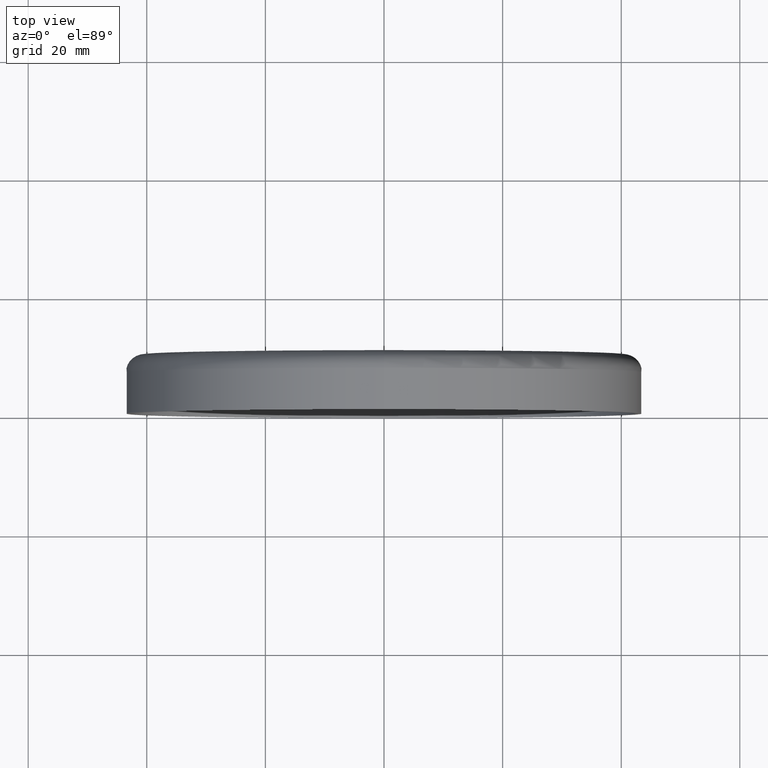
[diagram: clean part render]
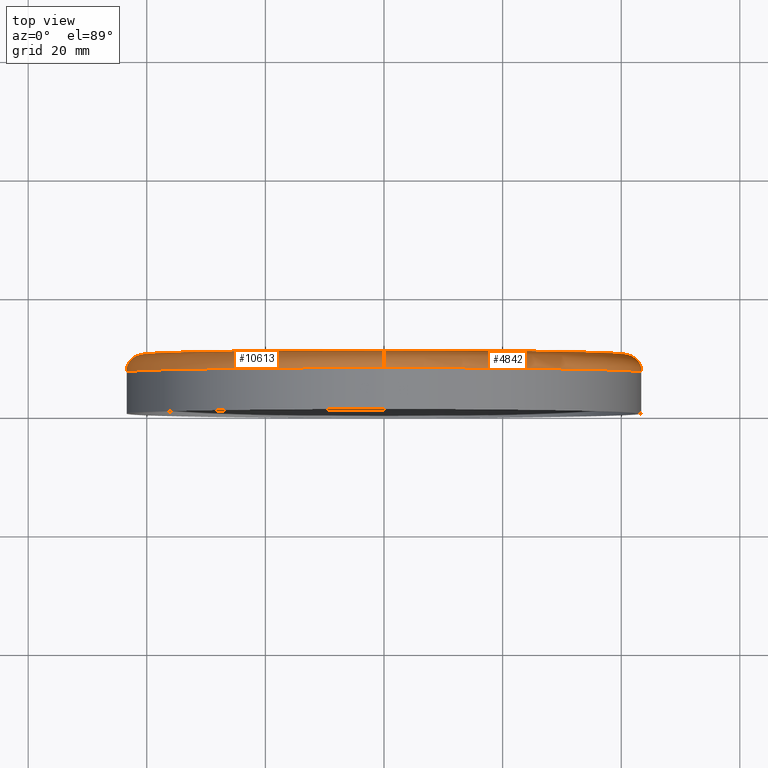
[diagram: same view with one multi-face feature highlighted, each face labeled with its STEP entity id]
A machine part, top view. The highlighted faces form ONE feature: a constant-radius fillet chain: 2 tangent blend faces with common blend radius 3 mm. The faces share edges in the B-rep.
Their STEP definitions:
[1] entity #4842 (Torus):
#73 = VERTEX_POINT ( 'NONE', #15443 ) ;
#164 = EDGE_CURVE ( 'NONE', #5377, #73, #1857, .T. ) ;
#195 = DIRECTION ( 'NONE',  ( -0.000000000000000000, -1.000000000000000000, -0.000000000000000000 ) ) ;
#556 = EDGE_LOOP ( 'NONE', ( #893, #5789, #2764, #14419 ) ) ;
#893 = ORIENTED_EDGE ( 'NONE', *, *, #11862, .T. ) ;
#912 = DIRECTION ( 'NONE',  ( 1.000000000000000000, 0.000000000000000000, -1.224646799147353207E-16 ) ) ;
#1103 = AXIS2_PLACEMENT_3D ( 'NONE', #13788, #195, #15109 ) ;
#1652 = DIRECTION ( 'NONE',  ( 0.000000000000000000, 0.000000000000000000, 1.000000000000000000 ) ) ;
#1793 = FACE_OUTER_BOUND ( 'NONE', #556, .T. ) ;
#1857 = CIRCLE ( 'NONE', #4273, 3.000000000000002665 ) ;
#1925 = CIRCLE ( 'NONE', #7227, 40.49999999999999289 ) ;
#2764 = ORIENTED_EDGE ( 'NONE', *, *, #8135, .F. ) ;
#3035 = CARTESIAN_POINT ( 'NONE',  ( 5.143516556418882533E-15, 9.999999999999998224, 40.49999999999999289 ) ) ;
#3637 = CIRCLE ( 'NONE', #11451, 3.000000000000002665 ) ;
#4273 = AXIS2_PLACEMENT_3D ( 'NONE', #10889, #912, #15670 ) ;
#4842 = ADVANCED_FACE ( 'NONE', ( #1793 ), #13028, .T. ) ;
#5127 = DIRECTION ( 'NONE',  ( -0.000000000000000000, -1.000000000000000000, -0.000000000000000000 ) ) ;
#5377 = VERTEX_POINT ( 'NONE', #3035 ) ;
#5439 = CARTESIAN_POINT ( 'NONE',  ( 0.000000000000000000, 9.999999999999998224, 0.000000000000000000 ) ) ;
#5789 = ORIENTED_EDGE ( 'NONE', *, *, #164, .T. ) ;
#7227 = AXIS2_PLACEMENT_3D ( 'NONE', #5439, #12912, #12700 ) ;
#7401 = VERTEX_POINT ( 'NONE', #12973 ) ;
#8135 = EDGE_CURVE ( 'NONE', #9293, #73, #14526, .T. ) ;
#9293 = VERTEX_POINT ( 'NONE', #13291 ) ;
#10889 = CARTESIAN_POINT ( 'NONE',  ( 4.959819536546779811E-15, 6.999999999999999112, 40.49999999999999289 ) ) ;
#10968 = EDGE_CURVE ( 'NONE', #7401, #9293, #3637, .T. ) ;
#11009 = AXIS2_PLACEMENT_3D ( 'NONE', #15162, #5127, #15000 ) ;
#11451 = AXIS2_PLACEMENT_3D ( 'NONE', #12727, #11496, #1652 ) ;
#11496 = DIRECTION ( 'NONE',  ( -1.000000000000000000, 0.000000000000000000, 0.000000000000000000 ) ) ;
#11862 = EDGE_CURVE ( 'NONE', #7401, #5377, #1925, .T. ) ;
#12700 = DIRECTION ( 'NONE',  ( 0.000000000000000000, 0.000000000000000000, -1.000000000000000000 ) ) ;
#12727 = CARTESIAN_POINT ( 'NONE',  ( 0.000000000000000000, 6.999999999999999112, -40.49999999999999289 ) ) ;
#12912 = DIRECTION ( 'NONE',  ( -0.000000000000000000, -1.000000000000000000, -0.000000000000000000 ) ) ;
#12973 = CARTESIAN_POINT ( 'NONE',  ( 0.000000000000000000, 9.999999999999998224, -40.49999999999999289 ) ) ;
#13028 = TOROIDAL_SURFACE ( 'NONE', #11009, 40.49999999999999289, 3.000000000000000888 ) ;
#13291 = CARTESIAN_POINT ( 'NONE',  ( 0.000000000000000000, 6.999999999999999112, -43.50000000000000000 ) ) ;
#13788 = CARTESIAN_POINT ( 'NONE',  ( 0.000000000000000000, 6.999999999999999112, 0.000000000000000000 ) ) ;
#14419 = ORIENTED_EDGE ( 'NONE', *, *, #10968, .F. ) ;
#14526 = CIRCLE ( 'NONE', #1103, 43.50000000000000000 ) ;
#15000 = DIRECTION ( 'NONE',  ( 0.000000000000000000, 0.000000000000000000, -1.000000000000000000 ) ) ;
#15109 = DIRECTION ( 'NONE',  ( 0.000000000000000000, 0.000000000000000000, -1.000000000000000000 ) ) ;
#15162 = CARTESIAN_POINT ( 'NONE',  ( 0.000000000000000000, 6.999999999999999112, 0.000000000000000000 ) ) ;
#15443 = CARTESIAN_POINT ( 'NONE',  ( 5.327213576290985256E-15, 6.999999999999999112, 43.50000000000000000 ) ) ;
#15670 = DIRECTION ( 'NONE',  ( -1.224646799147351975E-16, 0.000000000000000000, -1.000000000000000000 ) ) ;
[2] entity #10613 (Torus):
#73 = VERTEX_POINT ( 'NONE', #15443 ) ;
#164 = EDGE_CURVE ( 'NONE', #5377, #73, #1857, .T. ) ;
#169 = DIRECTION ( 'NONE',  ( 0.000000000000000000, 0.000000000000000000, -1.000000000000000000 ) ) ;
#186 = ORIENTED_EDGE ( 'NONE', *, *, #13319, .T. ) ;
#670 = ORIENTED_EDGE ( 'NONE', *, *, #12518, .F. ) ;
#912 = DIRECTION ( 'NONE',  ( 1.000000000000000000, 0.000000000000000000, -1.224646799147353207E-16 ) ) ;
#1534 = CARTESIAN_POINT ( 'NONE',  ( 0.000000000000000000, 9.999999999999998224, 0.000000000000000000 ) ) ;
#1652 = DIRECTION ( 'NONE',  ( 0.000000000000000000, 0.000000000000000000, 1.000000000000000000 ) ) ;
#1857 = CIRCLE ( 'NONE', #4273, 3.000000000000002665 ) ;
#2749 = DIRECTION ( 'NONE',  ( -0.000000000000000000, -1.000000000000000000, -0.000000000000000000 ) ) ;
#2910 = ORIENTED_EDGE ( 'NONE', *, *, #10968, .T. ) ;
#3035 = CARTESIAN_POINT ( 'NONE',  ( 5.143516556418882533E-15, 9.999999999999998224, 40.49999999999999289 ) ) ;
#3637 = CIRCLE ( 'NONE', #11451, 3.000000000000002665 ) ;
#4273 = AXIS2_PLACEMENT_3D ( 'NONE', #10889, #912, #15670 ) ;
#5217 = DIRECTION ( 'NONE',  ( -0.000000000000000000, -1.000000000000000000, -0.000000000000000000 ) ) ;
#5348 = CIRCLE ( 'NONE', #8043, 43.50000000000000000 ) ;
#5377 = VERTEX_POINT ( 'NONE', #3035 ) ;
#5915 = AXIS2_PLACEMENT_3D ( 'NONE', #1534, #15267, #7834 ) ;
#6950 = FACE_OUTER_BOUND ( 'NONE', #8428, .T. ) ;
#7401 = VERTEX_POINT ( 'NONE', #12973 ) ;
#7810 = CIRCLE ( 'NONE', #5915, 40.49999999999999289 ) ;
#7834 = DIRECTION ( 'NONE',  ( 0.000000000000000000, 0.000000000000000000, -1.000000000000000000 ) ) ;
#8043 = AXIS2_PLACEMENT_3D ( 'NONE', #10014, #2749, #169 ) ;
#8428 = EDGE_LOOP ( 'NONE', ( #15790, #186, #2910, #670 ) ) ;
#8636 = TOROIDAL_SURFACE ( 'NONE', #13120, 40.49999999999999289, 3.000000000000000888 ) ;
#9293 = VERTEX_POINT ( 'NONE', #13291 ) ;
#10014 = CARTESIAN_POINT ( 'NONE',  ( 0.000000000000000000, 6.999999999999999112, 0.000000000000000000 ) ) ;
#10613 = ADVANCED_FACE ( 'NONE', ( #6950 ), #8636, .T. ) ;
#10889 = CARTESIAN_POINT ( 'NONE',  ( 4.959819536546779811E-15, 6.999999999999999112, 40.49999999999999289 ) ) ;
#10968 = EDGE_CURVE ( 'NONE', #7401, #9293, #3637, .T. ) ;
#11451 = AXIS2_PLACEMENT_3D ( 'NONE', #12727, #11496, #1652 ) ;
#11496 = DIRECTION ( 'NONE',  ( -1.000000000000000000, 0.000000000000000000, 0.000000000000000000 ) ) ;
#12518 = EDGE_CURVE ( 'NONE', #73, #9293, #5348, .T. ) ;
#12727 = CARTESIAN_POINT ( 'NONE',  ( 0.000000000000000000, 6.999999999999999112, -40.49999999999999289 ) ) ;
#12973 = CARTESIAN_POINT ( 'NONE',  ( 0.000000000000000000, 9.999999999999998224, -40.49999999999999289 ) ) ;
#13120 = AXIS2_PLACEMENT_3D ( 'NONE', #15084, #5217, #13813 ) ;
#13291 = CARTESIAN_POINT ( 'NONE',  ( 0.000000000000000000, 6.999999999999999112, -43.50000000000000000 ) ) ;
#13319 = EDGE_CURVE ( 'NONE', #5377, #7401, #7810, .T. ) ;
#13813 = DIRECTION ( 'NONE',  ( 0.000000000000000000, 0.000000000000000000, -1.000000000000000000 ) ) ;
#15084 = CARTESIAN_POINT ( 'NONE',  ( 0.000000000000000000, 6.999999999999999112, 0.000000000000000000 ) ) ;
#15267 = DIRECTION ( 'NONE',  ( -0.000000000000000000, -1.000000000000000000, -0.000000000000000000 ) ) ;
#15443 = CARTESIAN_POINT ( 'NONE',  ( 5.327213576290985256E-15, 6.999999999999999112, 43.50000000000000000 ) ) ;
#15670 = DIRECTION ( 'NONE',  ( -1.224646799147351975E-16, 0.000000000000000000, -1.000000000000000000 ) ) ;
#15790 = ORIENTED_EDGE ( 'NONE', *, *, #164, .F. ) ;